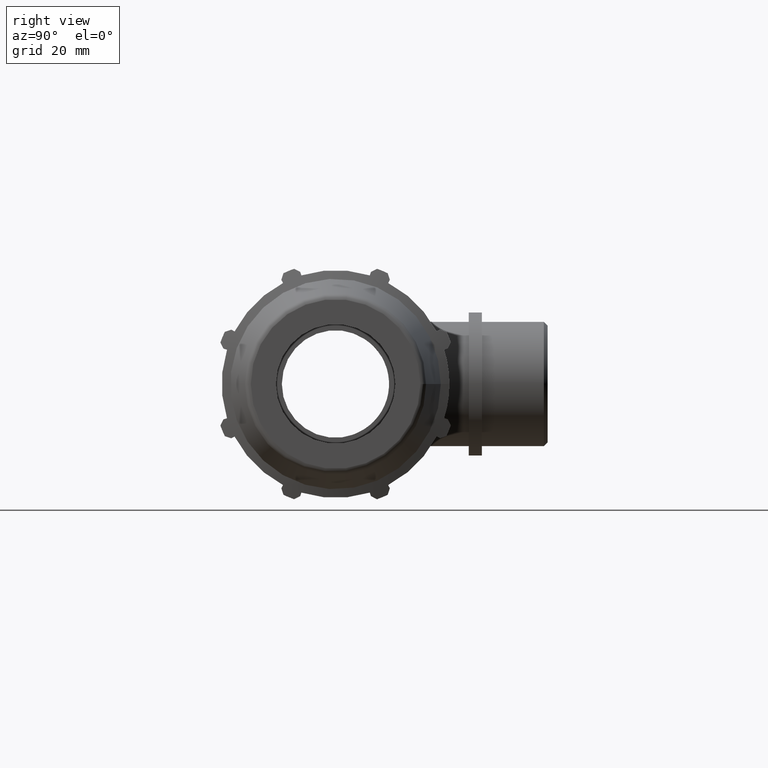
[diagram: clean part render]
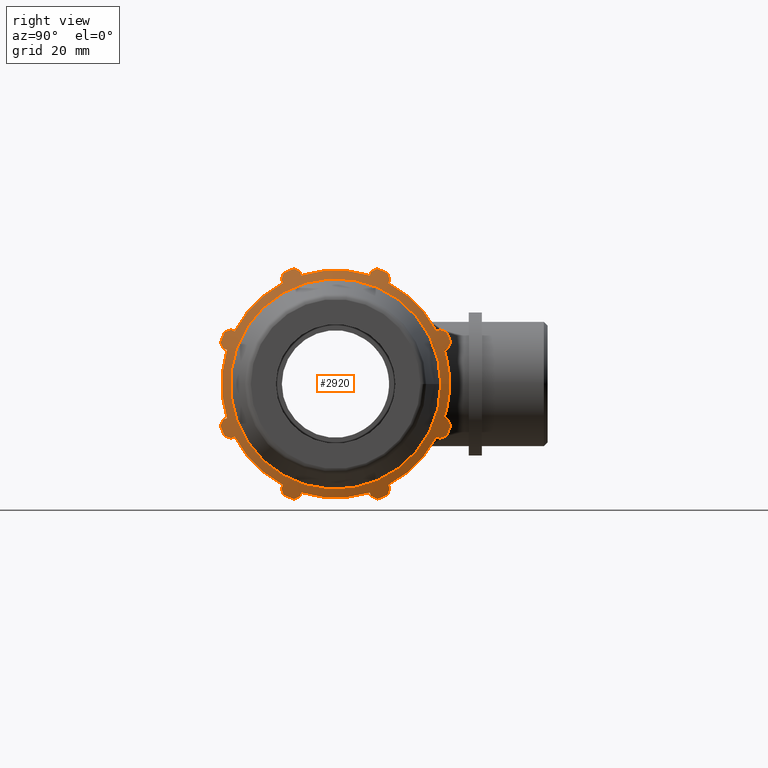
[diagram: same view with one face highlighted and labeled with its STEP entity id]
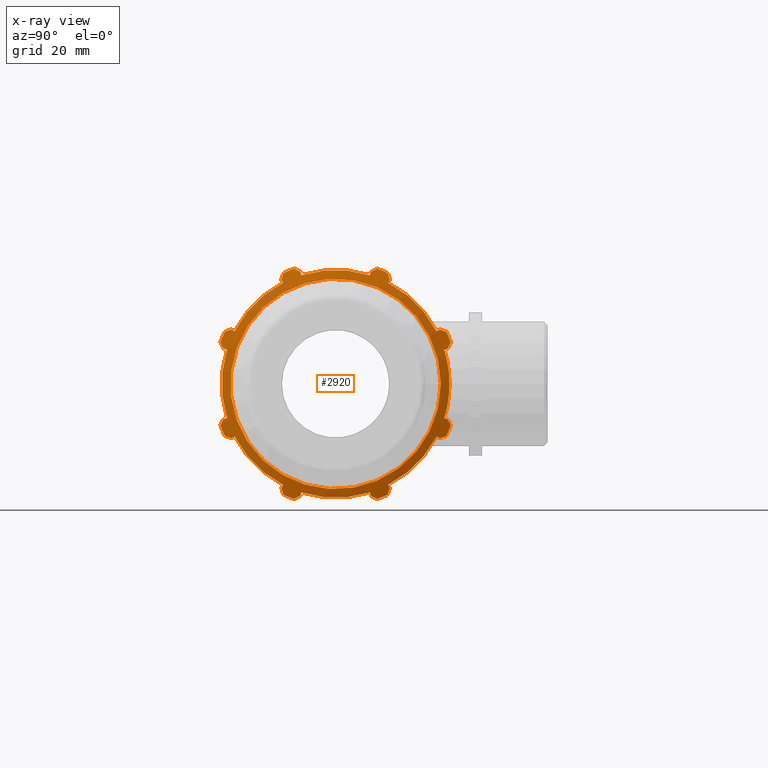
[diagram: x-ray of the same camera — body ghosted, the highlighted face saturated]
A machine part, right view. The second image highlights one B-rep face of the part: STEP entity #2920.
The next image is the same camera in x-ray: the body ghosted, the highlighted face saturated — about 0% of this face is hidden behind the body in this view.
In plain terms, the highlighted conical surface has half-angle 72 deg.
Its self-contained STEP definition (entity closure, byte-faithful):
#138=(
BOUNDED_CURVE()
B_SPLINE_CURVE(2,(#4685,#4686,#4687),.UNSPECIFIED.,.F.,.F.)
B_SPLINE_CURVE_WITH_KNOTS((3,3),(0.,0.221842721441217),.UNSPECIFIED.)
CURVE()
GEOMETRIC_REPRESENTATION_ITEM()
RATIONAL_B_SPLINE_CURVE((1.,1.00162169945646,1.00242705247199))
REPRESENTATION_ITEM('')
);
#141=(
BOUNDED_CURVE()
B_SPLINE_CURVE(2,(#4711,#4712,#4713),.UNSPECIFIED.,.F.,.F.)
B_SPLINE_CURVE_WITH_KNOTS((3,3),(0.,0.221842721441279),.UNSPECIFIED.)
CURVE()
GEOMETRIC_REPRESENTATION_ITEM()
RATIONAL_B_SPLINE_CURVE((1.,1.00162169945639,1.00242705247189))
REPRESENTATION_ITEM('')
);
#144=(
BOUNDED_CURVE()
B_SPLINE_CURVE(2,(#4737,#4738,#4739),.UNSPECIFIED.,.F.,.F.)
B_SPLINE_CURVE_WITH_KNOTS((3,3),(0.,0.221842721441158),.UNSPECIFIED.)
CURVE()
GEOMETRIC_REPRESENTATION_ITEM()
RATIONAL_B_SPLINE_CURVE((1.,1.00162169945657,1.00242705247216))
REPRESENTATION_ITEM('')
);
#147=(
BOUNDED_CURVE()
B_SPLINE_CURVE(2,(#4763,#4764,#4765),.UNSPECIFIED.,.F.,.F.)
B_SPLINE_CURVE_WITH_KNOTS((3,3),(0.,0.221842721441201),.UNSPECIFIED.)
CURVE()
GEOMETRIC_REPRESENTATION_ITEM()
RATIONAL_B_SPLINE_CURVE((1.,1.00162169945655,1.00242705247213))
REPRESENTATION_ITEM('')
);
#150=(
BOUNDED_CURVE()
B_SPLINE_CURVE(2,(#4789,#4790,#4791),.UNSPECIFIED.,.F.,.F.)
B_SPLINE_CURVE_WITH_KNOTS((3,3),(0.,0.22184272144122),.UNSPECIFIED.)
CURVE()
GEOMETRIC_REPRESENTATION_ITEM()
RATIONAL_B_SPLINE_CURVE((1.,1.00162169945651,1.00242705247207))
REPRESENTATION_ITEM('')
);
#153=(
BOUNDED_CURVE()
B_SPLINE_CURVE(2,(#4815,#4816,#4817),.UNSPECIFIED.,.F.,.F.)
B_SPLINE_CURVE_WITH_KNOTS((3,3),(0.,0.221842721441237),.UNSPECIFIED.)
CURVE()
GEOMETRIC_REPRESENTATION_ITEM()
RATIONAL_B_SPLINE_CURVE((1.,1.00162169945649,1.00242705247204))
REPRESENTATION_ITEM('')
);
#156=(
BOUNDED_CURVE()
B_SPLINE_CURVE(2,(#4841,#4842,#4843),.UNSPECIFIED.,.F.,.F.)
B_SPLINE_CURVE_WITH_KNOTS((3,3),(0.,0.221842721441156),.UNSPECIFIED.)
CURVE()
GEOMETRIC_REPRESENTATION_ITEM()
RATIONAL_B_SPLINE_CURVE((1.,1.00162169945644,1.00242705247196))
REPRESENTATION_ITEM('')
);
#159=(
BOUNDED_CURVE()
B_SPLINE_CURVE(2,(#4867,#4868,#4869),.UNSPECIFIED.,.F.,.F.)
B_SPLINE_CURVE_WITH_KNOTS((3,3),(0.,0.221842721441235),.UNSPECIFIED.)
CURVE()
GEOMETRIC_REPRESENTATION_ITEM()
RATIONAL_B_SPLINE_CURVE((1.,1.0016216994564,1.00242705247191))
REPRESENTATION_ITEM('')
);
#160=(
BOUNDED_CURVE()
B_SPLINE_CURVE(2,(#4885,#4886,#4887),.UNSPECIFIED.,.F.,.F.)
B_SPLINE_CURVE_WITH_KNOTS((3,3),(0.659553222107258,0.881395943548467),
 .UNSPECIFIED.)
CURVE()
GEOMETRIC_REPRESENTATION_ITEM()
RATIONAL_B_SPLINE_CURVE((1.00242705247223,1.00162169945662,1.))
REPRESENTATION_ITEM('')
);
#161=(
BOUNDED_CURVE()
B_SPLINE_CURVE(2,(#4898,#4899,#4900),.UNSPECIFIED.,.F.,.F.)
B_SPLINE_CURVE_WITH_KNOTS((3,3),(0.65955322210721,0.881395943548362),
 .UNSPECIFIED.)
CURVE()
GEOMETRIC_REPRESENTATION_ITEM()
RATIONAL_B_SPLINE_CURVE((1.00242705247202,1.00162169945648,1.))
REPRESENTATION_ITEM('')
);
#162=(
BOUNDED_CURVE()
B_SPLINE_CURVE(2,(#4907,#4908,#4909),.UNSPECIFIED.,.F.,.F.)
B_SPLINE_CURVE_WITH_KNOTS((3,3),(0.65955322210725,0.8813959435484),
 .UNSPECIFIED.)
CURVE()
GEOMETRIC_REPRESENTATION_ITEM()
RATIONAL_B_SPLINE_CURVE((1.00242705247214,1.00162169945656,1.))
REPRESENTATION_ITEM('')
);
#163=(
BOUNDED_CURVE()
B_SPLINE_CURVE(2,(#4916,#4917,#4918),.UNSPECIFIED.,.F.,.F.)
B_SPLINE_CURVE_WITH_KNOTS((3,3),(0.659553222107196,0.881395943548416),
 .UNSPECIFIED.)
CURVE()
GEOMETRIC_REPRESENTATION_ITEM()
RATIONAL_B_SPLINE_CURVE((1.00242705247196,1.00162169945644,1.))
REPRESENTATION_ITEM('')
);
#164=(
BOUNDED_CURVE()
B_SPLINE_CURVE(2,(#4925,#4926,#4927),.UNSPECIFIED.,.F.,.F.)
B_SPLINE_CURVE_WITH_KNOTS((3,3),(0.659553222107242,0.881395943548423),
 .UNSPECIFIED.)
CURVE()
GEOMETRIC_REPRESENTATION_ITEM()
RATIONAL_B_SPLINE_CURVE((1.00242705247205,1.0016216994565,1.))
REPRESENTATION_ITEM('')
);
#165=(
BOUNDED_CURVE()
B_SPLINE_CURVE(2,(#4934,#4935,#4936),.UNSPECIFIED.,.F.,.F.)
B_SPLINE_CURVE_WITH_KNOTS((3,3),(0.659553222107158,0.881395943548422),
 .UNSPECIFIED.)
CURVE()
GEOMETRIC_REPRESENTATION_ITEM()
RATIONAL_B_SPLINE_CURVE((1.00242705247186,1.00162169945637,1.))
REPRESENTATION_ITEM('')
);
#166=(
BOUNDED_CURVE()
B_SPLINE_CURVE(2,(#4943,#4944,#4945),.UNSPECIFIED.,.F.,.F.)
B_SPLINE_CURVE_WITH_KNOTS((3,3),(0.659553222107184,0.881395943548434),
 .UNSPECIFIED.)
CURVE()
GEOMETRIC_REPRESENTATION_ITEM()
RATIONAL_B_SPLINE_CURVE((1.00242705247189,1.00162169945639,1.))
REPRESENTATION_ITEM('')
);
#167=(
BOUNDED_CURVE()
B_SPLINE_CURVE(2,(#4952,#4953,#4954),.UNSPECIFIED.,.F.,.F.)
B_SPLINE_CURVE_WITH_KNOTS((3,3),(0.65955322210722,0.881395943548451),
 .UNSPECIFIED.)
CURVE()
GEOMETRIC_REPRESENTATION_ITEM()
RATIONAL_B_SPLINE_CURVE((1.002427052472,1.00162169945646,1.))
REPRESENTATION_ITEM('')
);
#253=CIRCLE('',#3171,38.13);
#254=CIRCLE('',#3172,41.);
#255=CIRCLE('',#3173,38.13);
#256=CIRCLE('',#3174,41.);
#257=CIRCLE('',#3175,38.13);
#258=CIRCLE('',#3176,41.);
#259=CIRCLE('',#3177,38.13);
#260=CIRCLE('',#3178,41.);
#261=CIRCLE('',#3179,38.13);
#262=CIRCLE('',#3180,41.);
#263=CIRCLE('',#3181,38.13);
#264=CIRCLE('',#3182,41.);
#265=CIRCLE('',#3183,38.13);
#266=CIRCLE('',#3184,41.);
#267=CIRCLE('',#3185,38.13);
#268=CIRCLE('',#3186,41.);
#269=CIRCLE('',#3187,35.2288914170826);
#408=LINE('',#4680,#606);
#414=LINE('',#4706,#612);
#420=LINE('',#4732,#618);
#426=LINE('',#4758,#624);
#432=LINE('',#4784,#630);
#438=LINE('',#4810,#636);
#444=LINE('',#4836,#642);
#450=LINE('',#4862,#648);
#456=LINE('',#4892,#654);
#457=LINE('',#4902,#655);
#458=LINE('',#4911,#656);
#459=LINE('',#4920,#657);
#460=LINE('',#4929,#658);
#461=LINE('',#4938,#659);
#462=LINE('',#4947,#660);
#463=LINE('',#4956,#661);
#606=VECTOR('',#3686,1.29329853581306);
#612=VECTOR('',#3700,1.29329853581307);
#618=VECTOR('',#3714,1.29329853581307);
#624=VECTOR('',#3728,1.29329853581307);
#630=VECTOR('',#3742,1.29329853581306);
#636=VECTOR('',#3756,1.29329853581305);
#642=VECTOR('',#3770,1.29329853581305);
#648=VECTOR('',#3784,1.29329853581305);
#654=VECTOR('',#3810,1.29329853581305);
#655=VECTOR('',#3817,1.29329853581306);
#656=VECTOR('',#3822,1.29329853581305);
#657=VECTOR('',#3827,1.29329853581307);
#658=VECTOR('',#3832,1.29329853581307);
#659=VECTOR('',#3837,1.29329853581307);
#660=VECTOR('',#3842,1.29329853581307);
#661=VECTOR('',#3847,1.29329853581307);
#710=CONICAL_SURFACE('',#3170,38.1144457085413,72.);
#735=FACE_BOUND('',#1047,.T.);
#863=FACE_OUTER_BOUND('',#1046,.T.);
#1046=EDGE_LOOP('',(#2349,#2350,#2351,#2352,#2353,#2354,#2355,#2356,#2357,
#2358,#2359,#2360,#2361,#2362,#2363,#2364,#2365,#2366,#2367,#2368,#2369,
#2370,#2371,#2372,#2373,#2374,#2375,#2376,#2377,#2378,#2379,#2380,#2381,
#2382,#2383,#2384,#2385,#2386,#2387,#2388,#2389,#2390,#2391,#2392,#2393,
#2394,#2395,#2396));
#1047=EDGE_LOOP('',(#2397));
#1306=VERTEX_POINT('',#4677);
#1307=VERTEX_POINT('',#4679);
#1308=VERTEX_POINT('',#4683);
#1313=VERTEX_POINT('',#4703);
#1314=VERTEX_POINT('',#4705);
#1315=VERTEX_POINT('',#4709);
#1320=VERTEX_POINT('',#4729);
#1321=VERTEX_POINT('',#4731);
#1322=VERTEX_POINT('',#4735);
#1327=VERTEX_POINT('',#4755);
#1328=VERTEX_POINT('',#4757);
#1329=VERTEX_POINT('',#4761);
#1334=VERTEX_POINT('',#4781);
#1335=VERTEX_POINT('',#4783);
#1336=VERTEX_POINT('',#4787);
#1341=VERTEX_POINT('',#4807);
#1342=VERTEX_POINT('',#4809);
#1343=VERTEX_POINT('',#4813);
#1348=VERTEX_POINT('',#4833);
#1349=VERTEX_POINT('',#4835);
#1350=VERTEX_POINT('',#4839);
#1355=VERTEX_POINT('',#4859);
#1356=VERTEX_POINT('',#4861);
#1357=VERTEX_POINT('',#4865);
#1362=VERTEX_POINT('',#4882);
#1363=VERTEX_POINT('',#4884);
#1364=VERTEX_POINT('',#4890);
#1365=VERTEX_POINT('',#4895);
#1366=VERTEX_POINT('',#4897);
#1367=VERTEX_POINT('',#4901);
#1368=VERTEX_POINT('',#4904);
#1369=VERTEX_POINT('',#4906);
#1370=VERTEX_POINT('',#4910);
#1371=VERTEX_POINT('',#4913);
#1372=VERTEX_POINT('',#4915);
#1373=VERTEX_POINT('',#4919);
#1374=VERTEX_POINT('',#4922);
#1375=VERTEX_POINT('',#4924);
#1376=VERTEX_POINT('',#4928);
#1377=VERTEX_POINT('',#4931);
#1378=VERTEX_POINT('',#4933);
#1379=VERTEX_POINT('',#4937);
#1380=VERTEX_POINT('',#4940);
#1381=VERTEX_POINT('',#4942);
#1382=VERTEX_POINT('',#4946);
#1383=VERTEX_POINT('',#4949);
#1384=VERTEX_POINT('',#4951);
#1385=VERTEX_POINT('',#4955);
#1386=VERTEX_POINT('',#4959);
#1642=EDGE_CURVE('',#1307,#1306,#408,.T.);
#1645=EDGE_CURVE('',#1308,#1306,#138,.T.);
#1652=EDGE_CURVE('',#1314,#1313,#414,.T.);
#1655=EDGE_CURVE('',#1315,#1313,#141,.T.);
#1662=EDGE_CURVE('',#1321,#1320,#420,.T.);
#1665=EDGE_CURVE('',#1322,#1320,#144,.T.);
#1672=EDGE_CURVE('',#1328,#1327,#426,.T.);
#1675=EDGE_CURVE('',#1329,#1327,#147,.T.);
#1682=EDGE_CURVE('',#1335,#1334,#432,.T.);
#1685=EDGE_CURVE('',#1336,#1334,#150,.T.);
#1692=EDGE_CURVE('',#1342,#1341,#438,.T.);
#1695=EDGE_CURVE('',#1343,#1341,#153,.T.);
#1702=EDGE_CURVE('',#1349,#1348,#444,.T.);
#1705=EDGE_CURVE('',#1350,#1348,#156,.T.);
#1712=EDGE_CURVE('',#1356,#1355,#450,.T.);
#1715=EDGE_CURVE('',#1357,#1355,#159,.T.);
#1721=EDGE_CURVE('',#1362,#1363,#160,.T.);
#1724=EDGE_CURVE('',#1362,#1364,#456,.T.);
#1725=EDGE_CURVE('',#1364,#1349,#253,.T.);
#1726=EDGE_CURVE('',#1350,#1365,#254,.T.);
#1727=EDGE_CURVE('',#1366,#1365,#161,.T.);
#1728=EDGE_CURVE('',#1366,#1367,#457,.T.);
#1729=EDGE_CURVE('',#1367,#1356,#255,.T.);
#1730=EDGE_CURVE('',#1357,#1368,#256,.T.);
#1731=EDGE_CURVE('',#1369,#1368,#162,.T.);
#1732=EDGE_CURVE('',#1369,#1370,#458,.T.);
#1733=EDGE_CURVE('',#1370,#1307,#257,.T.);
#1734=EDGE_CURVE('',#1308,#1371,#258,.T.);
#1735=EDGE_CURVE('',#1372,#1371,#163,.T.);
#1736=EDGE_CURVE('',#1372,#1373,#459,.T.);
#1737=EDGE_CURVE('',#1373,#1314,#259,.T.);
#1738=EDGE_CURVE('',#1315,#1374,#260,.T.);
#1739=EDGE_CURVE('',#1375,#1374,#164,.T.);
#1740=EDGE_CURVE('',#1375,#1376,#460,.T.);
#1741=EDGE_CURVE('',#1376,#1321,#261,.T.);
#1742=EDGE_CURVE('',#1322,#1377,#262,.T.);
#1743=EDGE_CURVE('',#1378,#1377,#165,.T.);
#1744=EDGE_CURVE('',#1378,#1379,#461,.T.);
#1745=EDGE_CURVE('',#1379,#1328,#263,.T.);
#1746=EDGE_CURVE('',#1329,#1380,#264,.T.);
#1747=EDGE_CURVE('',#1381,#1380,#166,.T.);
#1748=EDGE_CURVE('',#1381,#1382,#462,.T.);
#1749=EDGE_CURVE('',#1382,#1335,#265,.T.);
#1750=EDGE_CURVE('',#1336,#1383,#266,.T.);
#1751=EDGE_CURVE('',#1384,#1383,#167,.T.);
#1752=EDGE_CURVE('',#1384,#1385,#463,.T.);
#1753=EDGE_CURVE('',#1385,#1342,#267,.T.);
#1754=EDGE_CURVE('',#1343,#1363,#268,.T.);
#1755=EDGE_CURVE('',#1386,#1386,#269,.T.);
#2349=ORIENTED_EDGE('',*,*,#1721,.F.);
#2350=ORIENTED_EDGE('',*,*,#1724,.T.);
#2351=ORIENTED_EDGE('',*,*,#1725,.T.);
#2352=ORIENTED_EDGE('',*,*,#1702,.T.);
#2353=ORIENTED_EDGE('',*,*,#1705,.F.);
#2354=ORIENTED_EDGE('',*,*,#1726,.T.);
#2355=ORIENTED_EDGE('',*,*,#1727,.F.);
#2356=ORIENTED_EDGE('',*,*,#1728,.T.);
#2357=ORIENTED_EDGE('',*,*,#1729,.T.);
#2358=ORIENTED_EDGE('',*,*,#1712,.T.);
#2359=ORIENTED_EDGE('',*,*,#1715,.F.);
#2360=ORIENTED_EDGE('',*,*,#1730,.T.);
#2361=ORIENTED_EDGE('',*,*,#1731,.F.);
#2362=ORIENTED_EDGE('',*,*,#1732,.T.);
#2363=ORIENTED_EDGE('',*,*,#1733,.T.);
#2364=ORIENTED_EDGE('',*,*,#1642,.T.);
#2365=ORIENTED_EDGE('',*,*,#1645,.F.);
#2366=ORIENTED_EDGE('',*,*,#1734,.T.);
#2367=ORIENTED_EDGE('',*,*,#1735,.F.);
#2368=ORIENTED_EDGE('',*,*,#1736,.T.);
#2369=ORIENTED_EDGE('',*,*,#1737,.T.);
#2370=ORIENTED_EDGE('',*,*,#1652,.T.);
#2371=ORIENTED_EDGE('',*,*,#1655,.F.);
#2372=ORIENTED_EDGE('',*,*,#1738,.T.);
#2373=ORIENTED_EDGE('',*,*,#1739,.F.);
#2374=ORIENTED_EDGE('',*,*,#1740,.T.);
#2375=ORIENTED_EDGE('',*,*,#1741,.T.);
#2376=ORIENTED_EDGE('',*,*,#1662,.T.);
#2377=ORIENTED_EDGE('',*,*,#1665,.F.);
#2378=ORIENTED_EDGE('',*,*,#1742,.T.);
#2379=ORIENTED_EDGE('',*,*,#1743,.F.);
#2380=ORIENTED_EDGE('',*,*,#1744,.T.);
#2381=ORIENTED_EDGE('',*,*,#1745,.T.);
#2382=ORIENTED_EDGE('',*,*,#1672,.T.);
#2383=ORIENTED_EDGE('',*,*,#1675,.F.);
#2384=ORIENTED_EDGE('',*,*,#1746,.T.);
#2385=ORIENTED_EDGE('',*,*,#1747,.F.);
#2386=ORIENTED_EDGE('',*,*,#1748,.T.);
#2387=ORIENTED_EDGE('',*,*,#1749,.T.);
#2388=ORIENTED_EDGE('',*,*,#1682,.T.);
#2389=ORIENTED_EDGE('',*,*,#1685,.F.);
#2390=ORIENTED_EDGE('',*,*,#1750,.T.);
#2391=ORIENTED_EDGE('',*,*,#1751,.F.);
#2392=ORIENTED_EDGE('',*,*,#1752,.T.);
#2393=ORIENTED_EDGE('',*,*,#1753,.T.);
#2394=ORIENTED_EDGE('',*,*,#1692,.T.);
#2395=ORIENTED_EDGE('',*,*,#1695,.F.);
#2396=ORIENTED_EDGE('',*,*,#1754,.T.);
#2397=ORIENTED_EDGE('',*,*,#1755,.F.);
#2920=ADVANCED_FACE('',(#863,#735),#710,.T.);
#3170=AXIS2_PLACEMENT_3D('',#4893,#3811,#3812);
#3171=AXIS2_PLACEMENT_3D('',#4894,#3813,#3814);
#3172=AXIS2_PLACEMENT_3D('',#4896,#3815,#3816);
#3173=AXIS2_PLACEMENT_3D('',#4903,#3818,#3819);
#3174=AXIS2_PLACEMENT_3D('',#4905,#3820,#3821);
#3175=AXIS2_PLACEMENT_3D('',#4912,#3823,#3824);
#3176=AXIS2_PLACEMENT_3D('',#4914,#3825,#3826);
#3177=AXIS2_PLACEMENT_3D('',#4921,#3828,#3829);
#3178=AXIS2_PLACEMENT_3D('',#4923,#3830,#3831);
#3179=AXIS2_PLACEMENT_3D('',#4930,#3833,#3834);
#3180=AXIS2_PLACEMENT_3D('',#4932,#3835,#3836);
#3181=AXIS2_PLACEMENT_3D('',#4939,#3838,#3839);
#3182=AXIS2_PLACEMENT_3D('',#4941,#3840,#3841);
#3183=AXIS2_PLACEMENT_3D('',#4948,#3843,#3844);
#3184=AXIS2_PLACEMENT_3D('',#4950,#3845,#3846);
#3185=AXIS2_PLACEMENT_3D('',#4957,#3848,#3849);
#3186=AXIS2_PLACEMENT_3D('',#4958,#3850,#3851);
#3187=AXIS2_PLACEMENT_3D('',#4960,#3852,#3853);
#3686=DIRECTION('',(-0.309016994374947,-0.285988210106283,0.907038720710245));
#3700=DIRECTION('',(-0.309016994374947,-0.843597432918541,0.43914902750743));
#3714=DIRECTION('',(-0.309016994374947,-0.907038720710245,-0.285988210106283));
#3728=DIRECTION('',(-0.309016994374947,-0.43914902750743,-0.843597432918541));
#3742=DIRECTION('',(-0.309016994374947,0.285988210106282,-0.907038720710245));
#3756=DIRECTION('',(-0.309016994374948,0.843597432918541,-0.43914902750743));
#3770=DIRECTION('',(-0.309016994374948,0.907038720710245,0.285988210106283));
#3784=DIRECTION('',(-0.309016994374947,0.43914902750743,0.843597432918541));
#3810=DIRECTION('',(0.309016994374948,-0.907038720710245,0.285988210106283));
#3811=DIRECTION('center_axis',(-1.,-5.30313939382931E-16,0.));
#3812=DIRECTION('ref_axis',(-8.54486543630854E-16,1.,0.));
#3813=DIRECTION('center_axis',(1.,5.2224228458751E-16,0.));
#3814=DIRECTION('ref_axis',(4.98071319208588E-16,-0.953716950748227,-0.300705799504273));
#3815=DIRECTION('center_axis',(1.,5.30313939382931E-16,0.));
#3816=DIRECTION('ref_axis',(0.,0.,-1.));
#3817=DIRECTION('',(0.309016994374948,-0.843597432918541,-0.43914902750743));
#3818=DIRECTION('center_axis',(1.,6.19554375051006E-16,-2.34932168579848E-16));
#3819=DIRECTION('ref_axis',(7.76909949111225E-17,-0.461748613235034,-0.887010833178222));
#3820=DIRECTION('center_axis',(1.,5.30313939382931E-16,0.));
#3821=DIRECTION('ref_axis',(0.,0.,-1.));
#3822=DIRECTION('',(0.309016994374947,-0.285988210106282,-0.907038720710245));
#3823=DIRECTION('center_axis',(1.,8.54486543630854E-16,-3.32244259043343E-16));
#3824=DIRECTION('ref_axis',(-5.73816040906581E-16,0.300705799504273,-0.953716950748227));
#3825=DIRECTION('center_axis',(1.,5.30313939382931E-16,0.));
#3826=DIRECTION('ref_axis',(0.,0.,-1.));
#3827=DIRECTION('',(0.309016994374947,0.43914902750743,-0.843597432918541));
#3828=DIRECTION('center_axis',(1.,1.0894187122107E-15,-2.34932168579848E-16));
#3829=DIRECTION('ref_axis',(-1.074805802644E-15,0.887010833178222,-0.461748613235034));
#3830=DIRECTION('center_axis',(1.,5.30313939382931E-16,0.));
#3831=DIRECTION('ref_axis',(0.,0.,-1.));
#3832=DIRECTION('',(0.309016994374947,0.907038720710245,-0.285988210106283));
#3833=DIRECTION('center_axis',(1.,1.1867308026742E-15,-1.23259516440783E-31));
#3834=DIRECTION('ref_axis',(-1.13180528248543E-15,0.953716950748227,0.300705799504273));
#3835=DIRECTION('center_axis',(1.,5.30313939382931E-16,0.));
#3836=DIRECTION('ref_axis',(0.,0.,-1.));
#3837=DIRECTION('',(0.309016994374947,0.843597432918541,0.43914902750743));
#3838=DIRECTION('center_axis',(1.,1.0894187122107E-15,2.34932168579848E-16));
#3839=DIRECTION('ref_axis',(-7.11424958187966E-16,0.461748613235034,0.887010833178222));
#3840=DIRECTION('center_axis',(1.,5.30313939382931E-16,0.));
#3841=DIRECTION('ref_axis',(0.,0.,-1.));
#3842=DIRECTION('',(0.309016994374947,0.285988210106283,0.907038720710245));
#3843=DIRECTION('center_axis',(1.,8.54486543630854E-16,3.32244259043343E-16));
#3844=DIRECTION('ref_axis',(-5.99179223702629E-17,-0.300705799504273,0.953716950748227));
#3845=DIRECTION('center_axis',(1.,5.30313939382931E-16,0.));
#3846=DIRECTION('ref_axis',(0.,0.,-1.));
#3847=DIRECTION('',(0.309016994374947,-0.439149027507429,0.843597432918541));
#3848=DIRECTION('center_axis',(1.,6.19554375051006E-16,2.34932168579848E-16));
#3849=DIRECTION('ref_axis',(4.41071839367161E-16,-0.887010833178222,0.461748613235034));
#3850=DIRECTION('center_axis',(1.,5.30313939382931E-16,0.));
#3851=DIRECTION('ref_axis',(0.,0.,-1.));
#3852=DIRECTION('center_axis',(1.,5.30313939382931E-16,0.));
#3853=DIRECTION('ref_axis',(0.,0.,-1.));
#4677=CARTESIAN_POINT('',(76.5577214541333,-11.8357802684882,37.5382991814502));
#4679=CARTESIAN_POINT('',(76.9573726804998,-11.4659121350979,36.3652273320299));
#4680=CARTESIAN_POINT('',(76.9624265761557,-11.4612348694491,36.3503929406088));
#4683=CARTESIAN_POINT('',(76.0248531523114,-13.8828575782305,38.5780541948731));
#4685=CARTESIAN_POINT('Ctrl Pts',(76.0248531523112,-13.8828575782311,38.5780541948734));
#4686=CARTESIAN_POINT('Ctrl Pts',(76.3019446692587,-12.8384303793827,38.0475669431269));
#4687=CARTESIAN_POINT('Ctrl Pts',(76.5577214541333,-11.8357802684882,37.5382991814502));
#4703=CARTESIAN_POINT('',(76.5577214541333,-34.9127463938948,18.1744254169309));
#4705=CARTESIAN_POINT('',(76.9573726804998,-33.8217230690856,17.6064746226518));
#4706=CARTESIAN_POINT('',(76.9624265761557,-33.8079262440592,17.5992924501409));
#4709=CARTESIAN_POINT('',(76.0248531523114,-37.0954664619907,17.462140990363));
#4711=CARTESIAN_POINT('Ctrl Pts',(76.0248531523112,-37.0954664619915,17.4621409903628));
#4712=CARTESIAN_POINT('Ctrl Pts',(76.3019446692587,-35.9818337741872,17.8255514120812));
#4713=CARTESIAN_POINT('Ctrl Pts',(76.5577214541333,-34.9127463938948,18.1744254169309));
#4729=CARTESIAN_POINT('',(76.5577214541334,-37.5382991814502,-11.8357802684882));
#4731=CARTESIAN_POINT('',(76.9573726804998,-36.3652273320298,-11.4659121350979));
#4732=CARTESIAN_POINT('',(76.9624265761557,-36.3503929406088,-11.4612348694491));
#4735=CARTESIAN_POINT('',(76.0248531523114,-38.578054194873,-13.8828575782305));
#4737=CARTESIAN_POINT('Ctrl Pts',(76.0248531523112,-38.5780541948734,-13.8828575782312));
#4738=CARTESIAN_POINT('Ctrl Pts',(76.3019446692588,-38.0475669431268,-12.8384303793825));
#4739=CARTESIAN_POINT('Ctrl Pts',(76.5577214541333,-37.5382991814502,-11.8357802684882));
#4755=CARTESIAN_POINT('',(76.5577214541333,-18.1744254169309,-34.9127463938948));
#4757=CARTESIAN_POINT('',(76.9573726804998,-17.6064746226518,-33.8217230690856));
#4758=CARTESIAN_POINT('',(76.9624265761557,-17.5992924501409,-33.8079262440593));
#4761=CARTESIAN_POINT('',(76.0248531523114,-17.462140990363,-37.0954664619907));
#4763=CARTESIAN_POINT('Ctrl Pts',(76.0248531523112,-17.4621409903628,-37.0954664619915));
#4764=CARTESIAN_POINT('Ctrl Pts',(76.3019446692587,-17.8255514120812,-35.981833774187));
#4765=CARTESIAN_POINT('Ctrl Pts',(76.5577214541333,-18.1744254169309,-34.9127463938948));
#4781=CARTESIAN_POINT('',(76.5577214541333,11.8357802684882,-37.5382991814502));
#4783=CARTESIAN_POINT('',(76.9573726804998,11.465912135098,-36.3652273320299));
#4784=CARTESIAN_POINT('',(76.9624265761557,11.4612348694492,-36.3503929406088));
#4787=CARTESIAN_POINT('',(76.0248531523114,13.8828575782305,-38.5780541948731));
#4789=CARTESIAN_POINT('Ctrl Pts',(76.0248531523112,13.8828575782313,-38.5780541948735));
#4790=CARTESIAN_POINT('Ctrl Pts',(76.3019446692587,12.8384303793828,-38.0475669431269));
#4791=CARTESIAN_POINT('Ctrl Pts',(76.5577214541333,11.8357802684882,-37.5382991814502));
#4807=CARTESIAN_POINT('',(76.5577214541333,34.9127463938948,-18.1744254169309));
#4809=CARTESIAN_POINT('',(76.9573726804998,33.8217230690856,-17.6064746226519));
#4810=CARTESIAN_POINT('',(76.9624265761557,33.8079262440593,-17.5992924501409));
#4813=CARTESIAN_POINT('',(76.0248531523113,37.0954664619908,-17.4621409903631));
#4815=CARTESIAN_POINT('Ctrl Pts',(76.0248531523111,37.0954664619918,-17.4621409903627));
#4816=CARTESIAN_POINT('Ctrl Pts',(76.3019446692587,35.9818337741872,-17.8255514120812));
#4817=CARTESIAN_POINT('Ctrl Pts',(76.5577214541333,34.9127463938948,-18.1744254169309));
#4833=CARTESIAN_POINT('',(76.5577214541333,37.5382991814502,11.8357802684882));
#4835=CARTESIAN_POINT('',(76.9573726804998,36.3652273320299,11.4659121350979));
#4836=CARTESIAN_POINT('',(76.9624265761557,36.3503929406089,11.4612348694491));
#4839=CARTESIAN_POINT('',(76.0248531523113,38.5780541948731,13.8828575782305));
#4841=CARTESIAN_POINT('Ctrl Pts',(76.0248531523113,38.5780541948733,13.8828575782308));
#4842=CARTESIAN_POINT('Ctrl Pts',(76.3019446692587,38.0475669431268,12.8384303793825));
#4843=CARTESIAN_POINT('Ctrl Pts',(76.5577214541333,37.5382991814502,11.8357802684882));
#4859=CARTESIAN_POINT('',(76.5577214541333,18.174425416931,34.9127463938948));
#4861=CARTESIAN_POINT('',(76.9573726804998,17.6064746226519,33.8217230690856));
#4862=CARTESIAN_POINT('',(76.9624265761557,17.599292450141,33.8079262440593));
#4865=CARTESIAN_POINT('',(76.0248531523114,17.4621409903631,37.0954664619908));
#4867=CARTESIAN_POINT('Ctrl Pts',(76.0248531523113,17.462140990363,37.0954664619912));
#4868=CARTESIAN_POINT('Ctrl Pts',(76.3019446692587,17.8255514120813,35.9818337741871));
#4869=CARTESIAN_POINT('Ctrl Pts',(76.5577214541333,18.174425416931,34.9127463938948));
#4882=CARTESIAN_POINT('',(76.5577214541333,37.5382991814502,-11.8357802684882));
#4884=CARTESIAN_POINT('',(76.0248531523113,38.5780541948731,-13.8828575782305));
#4885=CARTESIAN_POINT('Ctrl Pts',(76.5577214541333,37.5382991814502,-11.8357802684882));
#4886=CARTESIAN_POINT('Ctrl Pts',(76.3019446692587,38.0475669431269,-12.8384303793827));
#4887=CARTESIAN_POINT('Ctrl Pts',(76.024853152311,38.5780541948737,-13.8828575782316));
#4890=CARTESIAN_POINT('',(76.9573726804998,36.3652273320299,-11.4659121350979));
#4892=CARTESIAN_POINT('',(76.9624265761557,36.3503929406089,-11.4612348694491));
#4893=CARTESIAN_POINT('Origin',(76.9624265761557,4.08142476220707E-14,0.));
#4894=CARTESIAN_POINT('Origin',(76.9573726804998,4.05213319711289E-14,0.));
#4895=CARTESIAN_POINT('',(76.0248531523113,37.0954664619908,17.462140990363));
#4896=CARTESIAN_POINT('Origin',(76.0248531523114,4.0317039366211E-14,0.));
#4897=CARTESIAN_POINT('',(76.5577214541333,34.9127463938948,18.1744254169309));
#4898=CARTESIAN_POINT('Ctrl Pts',(76.5577214541333,34.9127463938948,18.1744254169309));
#4899=CARTESIAN_POINT('Ctrl Pts',(76.3019446692587,35.9818337741868,17.8255514120813));
#4900=CARTESIAN_POINT('Ctrl Pts',(76.0248531523113,37.0954664619909,17.462140990363));
#4901=CARTESIAN_POINT('',(76.9573726804998,33.8217230690856,17.6064746226518));
#4902=CARTESIAN_POINT('',(76.9624265761557,33.8079262440593,17.5992924501409));
#4903=CARTESIAN_POINT('Origin',(76.9573726804998,4.23576499398055E-14,-4.43326374480848E-15));
#4904=CARTESIAN_POINT('',(76.0248531523114,13.8828575782306,38.5780541948731));
#4905=CARTESIAN_POINT('Origin',(76.0248531523114,4.0317039366211E-14,0.));
#4906=CARTESIAN_POINT('',(76.5577214541333,11.8357802684882,37.5382991814502));
#4907=CARTESIAN_POINT('Ctrl Pts',(76.5577214541333,11.8357802684882,37.5382991814502));
#4908=CARTESIAN_POINT('Ctrl Pts',(76.3019446692587,12.8384303793825,38.0475669431268));
#4909=CARTESIAN_POINT('Ctrl Pts',(76.0248531523112,13.8828575782311,38.5780541948733));
#4910=CARTESIAN_POINT('',(76.9573726804998,11.465912135098,36.3652273320299));
#4911=CARTESIAN_POINT('',(76.9624265761557,11.4612348694492,36.3503929406088));
#4912=CARTESIAN_POINT('Origin',(76.9573726804998,4.6790913684614E-14,-6.26958171348508E-15));
#4913=CARTESIAN_POINT('',(76.0248531523114,-17.462140990363,37.0954664619908));
#4914=CARTESIAN_POINT('Origin',(76.0248531523114,4.0317039366211E-14,0.));
#4915=CARTESIAN_POINT('',(76.5577214541333,-18.1744254169309,34.9127463938948));
#4916=CARTESIAN_POINT('Ctrl Pts',(76.5577214541333,-18.1744254169309,34.9127463938948));
#4917=CARTESIAN_POINT('Ctrl Pts',(76.3019446692587,-17.8255514120812,35.9818337741871));
#4918=CARTESIAN_POINT('Ctrl Pts',(76.0248531523112,-17.4621409903628,37.0954664619914));
#4919=CARTESIAN_POINT('',(76.9573726804998,-17.6064746226518,33.8217230690856));
#4920=CARTESIAN_POINT('',(76.9624265761557,-17.5992924501409,33.8079262440593));
#4921=CARTESIAN_POINT('Origin',(76.9573726804998,5.12241774294224E-14,-4.43326374480848E-15));
#4922=CARTESIAN_POINT('',(76.0248531523114,-38.578054194873,13.8828575782305));
#4923=CARTESIAN_POINT('Origin',(76.0248531523114,4.0317039366211E-14,0.));
#4924=CARTESIAN_POINT('',(76.5577214541334,-37.5382991814502,11.8357802684882));
#4925=CARTESIAN_POINT('Ctrl Pts',(76.5577214541334,-37.5382991814502,11.8357802684882));
#4926=CARTESIAN_POINT('Ctrl Pts',(76.3019446692587,-38.0475669431268,12.8384303793827));
#4927=CARTESIAN_POINT('Ctrl Pts',(76.0248531523112,-38.5780541948734,13.8828575782312));
#4928=CARTESIAN_POINT('',(76.9573726804998,-36.3652273320298,11.4659121350979));
#4929=CARTESIAN_POINT('',(76.9624265761557,-36.3503929406088,11.4612348694491));
#4930=CARTESIAN_POINT('Origin',(76.9573726804998,5.30604953980991E-14,-1.0348545158237E-29));
#4931=CARTESIAN_POINT('',(76.0248531523114,-37.0954664619907,-17.462140990363));
#4932=CARTESIAN_POINT('Origin',(76.0248531523114,4.0317039366211E-14,0.));
#4933=CARTESIAN_POINT('',(76.5577214541334,-34.9127463938948,-18.1744254169309));
#4934=CARTESIAN_POINT('Ctrl Pts',(76.5577214541334,-34.9127463938948,-18.1744254169309));
#4935=CARTESIAN_POINT('Ctrl Pts',(76.3019446692587,-35.9818337741872,-17.8255514120812));
#4936=CARTESIAN_POINT('Ctrl Pts',(76.0248531523112,-37.0954664619915,-17.4621409903628));
#4937=CARTESIAN_POINT('',(76.9573726804998,-33.8217230690856,-17.6064746226518));
#4938=CARTESIAN_POINT('',(76.9624265761557,-33.8079262440592,-17.5992924501409));
#4939=CARTESIAN_POINT('Origin',(76.9573726804998,5.12241774294225E-14,4.43326374480848E-15));
#4940=CARTESIAN_POINT('',(76.0248531523114,-13.8828575782305,-38.5780541948731));
#4941=CARTESIAN_POINT('Origin',(76.0248531523114,4.0317039366211E-14,0.));
#4942=CARTESIAN_POINT('',(76.5577214541333,-11.8357802684881,-37.5382991814502));
#4943=CARTESIAN_POINT('Ctrl Pts',(76.5577214541333,-11.8357802684881,-37.5382991814502));
#4944=CARTESIAN_POINT('Ctrl Pts',(76.3019446692587,-12.8384303793828,-38.047566943127));
#4945=CARTESIAN_POINT('Ctrl Pts',(76.0248531523112,-13.8828575782312,-38.5780541948735));
#4946=CARTESIAN_POINT('',(76.9573726804998,-11.4659121350979,-36.3652273320299));
#4947=CARTESIAN_POINT('',(76.9624265761557,-11.4612348694491,-36.3503929406088));
#4948=CARTESIAN_POINT('Origin',(76.9573726804998,4.6790913684614E-14,6.26958171348508E-15));
#4949=CARTESIAN_POINT('',(76.0248531523114,17.4621409903631,-37.0954664619908));
#4950=CARTESIAN_POINT('Origin',(76.0248531523114,4.0317039366211E-14,0.));
#4951=CARTESIAN_POINT('',(76.5577214541333,18.174425416931,-34.9127463938948));
#4952=CARTESIAN_POINT('Ctrl Pts',(76.5577214541333,18.174425416931,-34.9127463938948));
#4953=CARTESIAN_POINT('Ctrl Pts',(76.3019446692587,17.8255514120812,-35.9818337741872));
#4954=CARTESIAN_POINT('Ctrl Pts',(76.0248531523111,17.4621409903628,-37.0954664619917));
#4955=CARTESIAN_POINT('',(76.9573726804998,17.6064746226519,-33.8217230690856));
#4956=CARTESIAN_POINT('',(76.9624265761557,17.599292450141,-33.8079262440593));
#4957=CARTESIAN_POINT('Origin',(76.9573726804998,4.23576499398055E-14,4.43326374480848E-15));
#4958=CARTESIAN_POINT('Origin',(76.0248531523114,4.0317039366211E-14,0.));
#4959=CARTESIAN_POINT('',(77.9,35.2288914170826,0.));
#4960=CARTESIAN_POINT('Origin',(77.9,4.13114558779303E-14,0.));